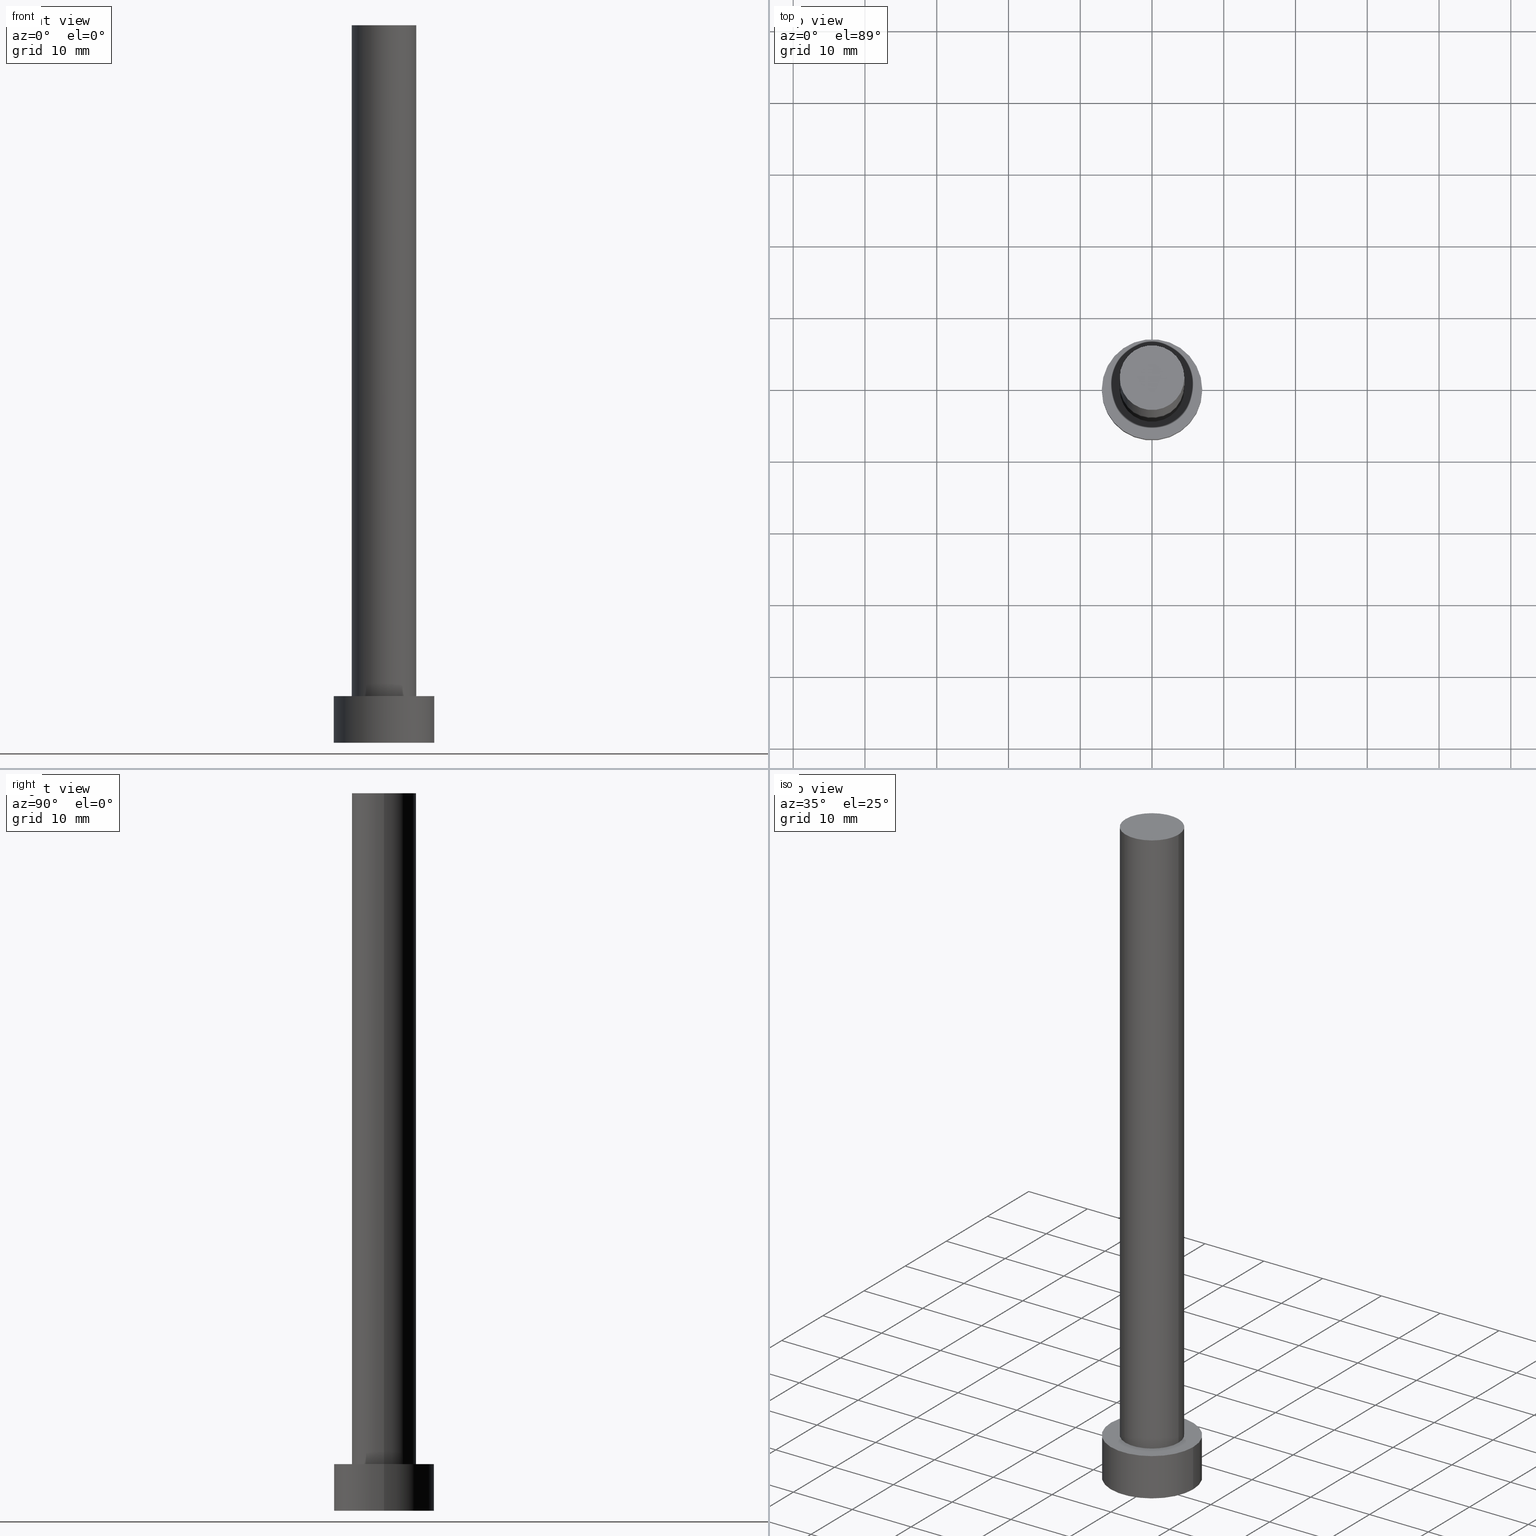
[diagram: canonical four-view strip — front | top / right | iso, engineering-drawing reading convention]
A machine part, canonical four-view strip (front | top / right | iso — engineering-drawing reading convention). The complete STEP part file that produces these views, byte-faithful:
ISO-10303-21;
HEADER;
FILE_DESCRIPTION (( 'STEP AP203' ),
    '1' );
FILE_NAME ('4ae0.STEP',
    '2023-02-13T13:46:45',
    ( '' ),
    ( '' ),
    'SwSTEP 2.0',
    'SolidWorks 2019',
    '' );
FILE_SCHEMA (( 'CONFIG_CONTROL_DESIGN' ));
ENDSEC;

DATA;
#1 = ADVANCED_FACE ( 'NONE', ( #166 ), #96, .T. ) ;
#2 = VECTOR ( 'NONE', #242, 1000.000000000000000 ) ;
#3 = APPROVAL_DATE_TIME ( #103, #79 ) ;
#4 = ORIENTED_EDGE ( 'NONE', *, *, #202, .T. ) ;
#5 = ORIENTED_EDGE ( 'NONE', *, *, #157, .F. ) ;
#6 = FACE_OUTER_BOUND ( 'NONE', #219, .T. ) ;
#7 = AXIS2_PLACEMENT_3D ( 'NONE', #247, #120, #173 ) ;
#8 = CARTESIAN_POINT ( 'NONE',  ( 0.000000000000000000, 0.000000000000000000, 100.0000000000000000 ) ) ;
#9 = ORIENTED_EDGE ( 'NONE', *, *, #202, .F. ) ;
#10 = CARTESIAN_POINT ( 'NONE',  ( 4.500000000000000888, 5.510910596163089556E-16, 6.500000000000000000 ) ) ;
#11 = ORIENTED_EDGE ( 'NONE', *, *, #45, .T. ) ;
#12 = DIRECTION ( 'NONE',  ( -1.000000000000000000, 0.000000000000000000, 0.000000000000000000 ) ) ;
#13 = AXIS2_PLACEMENT_3D ( 'NONE', #38, #57, #78 ) ;
#14 = ADVANCED_FACE ( 'NONE', ( #224 ), #50, .T. ) ;
#15 = CARTESIAN_POINT ( 'NONE',  ( 0.000000000000000000, 0.000000000000000000, 0.000000000000000000 ) ) ;
#16 = PERSON_AND_ORGANIZATION_ROLE ( 'creator' ) ;
#17 =( LENGTH_UNIT ( ) NAMED_UNIT ( * ) SI_UNIT ( .MILLI., .METRE. ) );
#18 = PERSON_AND_ORGANIZATION_ROLE ( 'design_owner' ) ;
#19 = AXIS2_PLACEMENT_3D ( 'NONE', #41, #100, #137 ) ;
#20 = DESIGN_CONTEXT ( 'detailed design', #138, 'design' ) ;
#21 = COORDINATED_UNIVERSAL_TIME_OFFSET ( 1, 0, .AHEAD. ) ;
#22 = APPROVAL ( #58, 'NEUR�EN�' ) ;
#23 = CC_DESIGN_PERSON_AND_ORGANIZATION_ASSIGNMENT ( #235, #84, ( #169 ) ) ;
#24 = APPROVAL_ROLE ( '' ) ;
#25 = EDGE_CURVE ( 'NONE', #160, #140, #161, .T. ) ;
#26 = CC_DESIGN_PERSON_AND_ORGANIZATION_ASSIGNMENT ( #170, #122, ( #124 ) ) ;
#27 = CIRCLE ( 'NONE', #135, 7.000000000000000000 ) ;
#28 = ORIENTED_EDGE ( 'NONE', *, *, #157, .T. ) ;
#29 = DIRECTION ( 'NONE',  ( -0.000000000000000000, -0.000000000000000000, -1.000000000000000000 ) ) ;
#30 = PLANE ( 'NONE',  #121 ) ;
#31 = ORIENTED_EDGE ( 'NONE', *, *, #212, .F. ) ;
#32 = LOCAL_TIME ( 14, 46, 45.00000000000000000, #119 ) ;
#33 = CARTESIAN_POINT ( 'NONE',  ( -7.000000000000000000, 0.000000000000000000, 6.500000000000000000 ) ) ;
#34 = VERTEX_POINT ( 'NONE', #65 ) ;
#35 = DIRECTION ( 'NONE',  ( -1.000000000000000000, 0.000000000000000000, 0.000000000000000000 ) ) ;
#36 = PLANE ( 'NONE',  #168 ) ;
#37 = AXIS2_PLACEMENT_3D ( 'NONE', #218, #194, #195 ) ;
#38 = CARTESIAN_POINT ( 'NONE',  ( 0.000000000000000000, 0.000000000000000000, 6.500000000000000000 ) ) ;
#39 = DATE_AND_TIME ( #134, #46 ) ;
#40 = DIRECTION ( 'NONE',  ( 1.000000000000000000, 0.000000000000000000, 0.000000000000000000 ) ) ;
#41 = CARTESIAN_POINT ( 'NONE',  ( 0.000000000000000000, 0.000000000000000000, 6.500000000000000000 ) ) ;
#42 = CIRCLE ( 'NONE', #37, 4.500000000000000888 ) ;
#43 = CC_DESIGN_SECURITY_CLASSIFICATION ( #169, ( #172 ) ) ;
#44 = APPLICATION_PROTOCOL_DEFINITION ( 'international standard', 'config_control_design', 1994, #138 ) ;
#45 = EDGE_CURVE ( 'NONE', #211, #34, #42, .T. ) ;
#46 = LOCAL_TIME ( 14, 46, 45.00000000000000000, #76 ) ;
#47 = ORIENTED_EDGE ( 'NONE', *, *, #163, .T. ) ;
#48 = CARTESIAN_POINT ( 'NONE',  ( 0.000000000000000000, 0.000000000000000000, 0.000000000000000000 ) ) ;
#49 = ORIENTED_EDGE ( 'NONE', *, *, #25, .F. ) ;
#50 = PLANE ( 'NONE',  #208 ) ;
#51 = LINE ( 'NONE', #199, #102 ) ;
#52 = PRODUCT_DEFINITION_SHAPE ( 'NONE', 'NONE',  #124 ) ;
#53 = AXIS2_PLACEMENT_3D ( 'NONE', #165, #200, #35 ) ;
#54 = DIRECTION ( 'NONE',  ( -1.000000000000000000, 0.000000000000000000, 0.000000000000000000 ) ) ;
#55 = CARTESIAN_POINT ( 'NONE',  ( 7.000000000000000000, 8.572527594031471218E-16, 6.500000000000000000 ) ) ;
#56 =( NAMED_UNIT ( * ) PLANE_ANGLE_UNIT ( ) SI_UNIT ( $, .RADIAN. ) );
#57 = DIRECTION ( 'NONE',  ( 0.000000000000000000, 0.000000000000000000, 1.000000000000000000 ) ) ;
#58 = APPROVAL_STATUS ( 'not_yet_approved' ) ;
#59 = DIRECTION ( 'NONE',  ( 1.000000000000000000, 0.000000000000000000, 0.000000000000000000 ) ) ;
#60 = CIRCLE ( 'NONE', #111, 4.500000000000000888 ) ;
#61 = PRODUCT_RELATED_PRODUCT_CATEGORY ( 'detail', '', ( #94 ) ) ;
#62 = ORIENTED_EDGE ( 'NONE', *, *, #230, .F. ) ;
#63 = DATE_AND_TIME ( #210, #130 ) ;
#64 = ORIENTED_EDGE ( 'NONE', *, *, #174, .T. ) ;
#65 = CARTESIAN_POINT ( 'NONE',  ( -4.500000000000000888, 0.000000000000000000, 100.0000000000000000 ) ) ;
#66 = VERTEX_POINT ( 'NONE', #10 ) ;
#67 = DIRECTION ( 'NONE',  ( 1.000000000000000000, 0.000000000000000000, 0.000000000000000000 ) ) ;
#68 = APPROVAL ( #206, 'NEUR�EN�' ) ;
#69 = CYLINDRICAL_SURFACE ( 'NONE', #228, 4.500000000000000888 ) ;
#70 = ADVANCED_FACE ( 'NONE', ( #6 ), #223, .T. ) ;
#71 = DIRECTION ( 'NONE',  ( 0.000000000000000000, 0.000000000000000000, 1.000000000000000000 ) ) ;
#72 = DIRECTION ( 'NONE',  ( -1.000000000000000000, 0.000000000000000000, 0.000000000000000000 ) ) ;
#73 = VECTOR ( 'NONE', #132, 1000.000000000000000 ) ;
#74 = FACE_BOUND ( 'NONE', #107, .T. ) ;
#75 = PERSON_AND_ORGANIZATION ( #159, #227 ) ;
#76 = COORDINATED_UNIVERSAL_TIME_OFFSET ( 1, 0, .AHEAD. ) ;
#77 = CIRCLE ( 'NONE', #153, 4.500000000000000888 ) ;
#78 = DIRECTION ( 'NONE',  ( 1.000000000000000000, 0.000000000000000000, 0.000000000000000000 ) ) ;
#79 = APPROVAL ( #83, 'NEUR�EN�' ) ;
#80 = APPROVAL_ROLE ( '' ) ;
#81 = CALENDAR_DATE ( 2023, 13, 2 ) ;
#82 = MANIFOLD_SOLID_BREP ( 'P�idat vysunut�m3', #98 ) ;
#83 = APPROVAL_STATUS ( 'not_yet_approved' ) ;
#84 = PERSON_AND_ORGANIZATION_ROLE ( 'classification_officer' ) ;
#85 = AXIS2_PLACEMENT_3D ( 'NONE', #237, #185, #67 ) ;
#86 = ORIENTED_EDGE ( 'NONE', *, *, #88, .F. ) ;
#87 = CARTESIAN_POINT ( 'NONE',  ( 4.500000000000000888, 5.510910596163089556E-16, 100.0000000000000000 ) ) ;
#88 = EDGE_CURVE ( 'NONE', #66, #158, #77, .T. ) ;
#89 = EDGE_LOOP ( 'NONE', ( #217, #31, #64, #91 ) ) ;
#90 = DIRECTION ( 'NONE',  ( 0.000000000000000000, 0.000000000000000000, 1.000000000000000000 ) ) ;
#91 = ORIENTED_EDGE ( 'NONE', *, *, #230, .T. ) ;
#92 = CARTESIAN_POINT ( 'NONE',  ( 7.000000000000000000, 8.572527594031471218E-16, 6.500000000000000000 ) ) ;
#93 = EDGE_LOOP ( 'NONE', ( #9, #213 ) ) ;
#94 = PRODUCT ( '4ae0', '4ae0', '', ( #189 ) ) ;
#95 = FACE_OUTER_BOUND ( 'NONE', #241, .T. ) ;
#96 = CYLINDRICAL_SURFACE ( 'NONE', #129, 7.000000000000000000 ) ;
#97 = FACE_OUTER_BOUND ( 'NONE', #141, .T. ) ;
#98 = CLOSED_SHELL ( 'NONE', ( #193, #70, #1, #133, #198, #155, #14 ) ) ;
#99 = APPROVAL_DATE_TIME ( #232, #68 ) ;
#100 = DIRECTION ( 'NONE',  ( 0.000000000000000000, 0.000000000000000000, 1.000000000000000000 ) ) ;
#101 = APPROVAL_DATE_TIME ( #39, #22 ) ;
#102 = VECTOR ( 'NONE', #116, 1000.000000000000000 ) ;
#103 = DATE_AND_TIME ( #156, #245 ) ;
#104 = COORDINATED_UNIVERSAL_TIME_OFFSET ( 1, 0, .AHEAD. ) ;
#105 = SHAPE_DEFINITION_REPRESENTATION ( #52, #254 ) ;
#106 = CC_DESIGN_PERSON_AND_ORGANIZATION_ASSIGNMENT ( #75, #16, ( #172 ) ) ;
#107 = EDGE_LOOP ( 'NONE', ( #62, #86 ) ) ;
#108 = CARTESIAN_POINT ( 'NONE',  ( 0.000000000000000000, 0.000000000000000000, 100.0000000000000000 ) ) ;
#109 = ORIENTED_EDGE ( 'NONE', *, *, #25, .T. ) ;
#110 = CARTESIAN_POINT ( 'NONE',  ( 0.000000000000000000, 0.000000000000000000, 6.500000000000000000 ) ) ;
#111 = AXIS2_PLACEMENT_3D ( 'NONE', #108, #180, #40 ) ;
#112 = ORIENTED_EDGE ( 'NONE', *, *, #191, .T. ) ;
#113 = CARTESIAN_POINT ( 'NONE',  ( -7.000000000000000000, 0.000000000000000000, 0.000000000000000000 ) ) ;
#114 = EDGE_LOOP ( 'NONE', ( #49, #221, #28, #4 ) ) ;
#115 = DIRECTION ( 'NONE',  ( 0.000000000000000000, 0.000000000000000000, 1.000000000000000000 ) ) ;
#116 = DIRECTION ( 'NONE',  ( -0.000000000000000000, -0.000000000000000000, -1.000000000000000000 ) ) ;
#117 = CC_DESIGN_PERSON_AND_ORGANIZATION_ASSIGNMENT ( #226, #18, ( #94 ) ) ;
#118 = SECURITY_CLASSIFICATION_LEVEL ( 'unclassified' ) ;
#119 = COORDINATED_UNIVERSAL_TIME_OFFSET ( 1, 0, .AHEAD. ) ;
#120 = DIRECTION ( 'NONE',  ( 0.000000000000000000, 0.000000000000000000, 1.000000000000000000 ) ) ;
#121 = AXIS2_PLACEMENT_3D ( 'NONE', #110, #71, #225 ) ;
#122 = PERSON_AND_ORGANIZATION_ROLE ( 'creator' ) ;
#123 = CIRCLE ( 'NONE', #19, 7.000000000000000000 ) ;
#124 = PRODUCT_DEFINITION ( 'NEZN�M�', '', #172, #20 ) ;
#125 = DIRECTION ( 'NONE',  ( 1.000000000000000000, 0.000000000000000000, 0.000000000000000000 ) ) ;
#126 = ORIENTED_EDGE ( 'NONE', *, *, #212, .T. ) ;
#127 = DIRECTION ( 'NONE',  ( -0.000000000000000000, -0.000000000000000000, -1.000000000000000000 ) ) ;
#128 = LINE ( 'NONE', #150, #73 ) ;
#129 = AXIS2_PLACEMENT_3D ( 'NONE', #243, #149, #72 ) ;
#130 = LOCAL_TIME ( 14, 46, 45.00000000000000000, #104 ) ;
#131 = FACE_OUTER_BOUND ( 'NONE', #93, .T. ) ;
#132 = DIRECTION ( 'NONE',  ( -0.000000000000000000, -0.000000000000000000, -1.000000000000000000 ) ) ;
#133 = ADVANCED_FACE ( 'NONE', ( #74, #97 ), #30, .T. ) ;
#134 = CALENDAR_DATE ( 2023, 13, 2 ) ;
#135 = AXIS2_PLACEMENT_3D ( 'NONE', #239, #186, #125 ) ;
#136 = CALENDAR_DATE ( 2023, 13, 2 ) ;
#137 = DIRECTION ( 'NONE',  ( 1.000000000000000000, 0.000000000000000000, 0.000000000000000000 ) ) ;
#138 = APPLICATION_CONTEXT ( 'configuration controlled 3d designs of mechanical parts and assemblies' ) ;
#139 =( GEOMETRIC_REPRESENTATION_CONTEXT ( 3 ) GLOBAL_UNCERTAINTY_ASSIGNED_CONTEXT ( ( #255 ) ) GLOBAL_UNIT_ASSIGNED_CONTEXT ( ( #17, #56, #229 ) ) REPRESENTATION_CONTEXT ( 'NONE', 'WORKASPACE' ) );
#140 = VERTEX_POINT ( 'NONE', #183 ) ;
#141 = EDGE_LOOP ( 'NONE', ( #238, #112 ) ) ;
#142 = DIRECTION ( 'NONE',  ( -0.000000000000000000, -0.000000000000000000, -1.000000000000000000 ) ) ;
#143 = CARTESIAN_POINT ( 'NONE',  ( 0.000000000000000000, 0.000000000000000000, 6.500000000000000000 ) ) ;
#144 = VERTEX_POINT ( 'NONE', #244 ) ;
#145 = LINE ( 'NONE', #33, #205 ) ;
#146 = ORIENTED_EDGE ( 'NONE', *, *, #191, .F. ) ;
#147 = CYLINDRICAL_SURFACE ( 'NONE', #53, 4.500000000000000888 ) ;
#148 = APPROVAL_PERSON_ORGANIZATION ( #234, #79, #24 ) ;
#149 = DIRECTION ( 'NONE',  ( -0.000000000000000000, -0.000000000000000000, -1.000000000000000000 ) ) ;
#150 = CARTESIAN_POINT ( 'NONE',  ( -4.500000000000000888, 0.000000000000000000, 100.0000000000000000 ) ) ;
#151 = PERSON_AND_ORGANIZATION ( #159, #227 ) ;
#152 = DIRECTION ( 'NONE',  ( 0.000000000000000000, 0.000000000000000000, 1.000000000000000000 ) ) ;
#153 = AXIS2_PLACEMENT_3D ( 'NONE', #240, #90, #197 ) ;
#154 = CC_DESIGN_APPROVAL ( #68, ( #172 ) ) ;
#155 = ADVANCED_FACE ( 'NONE', ( #167 ), #69, .T. ) ;
#156 = CALENDAR_DATE ( 2023, 13, 2 ) ;
#157 = EDGE_CURVE ( 'NONE', #144, #184, #145, .T. ) ;
#158 = VERTEX_POINT ( 'NONE', #215 ) ;
#159 = PERSON ( 'NEUR�EN�', 'NEUR�EN�', 'NEUR�EN�', ('NEUR�EN�'), ('NEUR�EN�'), ('NEUR�EN�') ) ;
#160 = VERTEX_POINT ( 'NONE', #55 ) ;
#161 = LINE ( 'NONE', #92, #2 ) ;
#162 = DIRECTION ( 'NONE',  ( 1.000000000000000000, 0.000000000000000000, -0.000000000000000000 ) ) ;
#163 = EDGE_CURVE ( 'NONE', #211, #66, #51, .T. ) ;
#164 = DIRECTION ( 'NONE',  ( 0.000000000000000000, 0.000000000000000000, 1.000000000000000000 ) ) ;
#165 = CARTESIAN_POINT ( 'NONE',  ( 0.000000000000000000, 0.000000000000000000, 100.0000000000000000 ) ) ;
#166 = FACE_OUTER_BOUND ( 'NONE', #114, .T. ) ;
#167 = FACE_OUTER_BOUND ( 'NONE', #89, .T. ) ;
#168 = AXIS2_PLACEMENT_3D ( 'NONE', #48, #115, #187 ) ;
#169 = SECURITY_CLASSIFICATION ( '', '', #118 ) ;
#170 = PERSON_AND_ORGANIZATION ( #159, #227 ) ;
#171 = DATE_TIME_ROLE ( 'creation_date' ) ;
#172 = PRODUCT_DEFINITION_FORMATION_WITH_SPECIFIED_SOURCE ( 'LIBOVOLN�', '', #94, .NOT_KNOWN. ) ;
#173 = DIRECTION ( 'NONE',  ( 1.000000000000000000, 0.000000000000000000, 0.000000000000000000 ) ) ;
#174 = EDGE_CURVE ( 'NONE', #34, #158, #128, .T. ) ;
#175 = AXIS2_PLACEMENT_3D ( 'NONE', #15, #152, #59 ) ;
#176 = CIRCLE ( 'NONE', #85, 7.000000000000000000 ) ;
#177 = APPROVAL_PERSON_ORGANIZATION ( #252, #68, #80 ) ;
#178 = EDGE_LOOP ( 'NONE', ( #126, #11 ) ) ;
#179 = ORIENTED_EDGE ( 'NONE', *, *, #45, .F. ) ;
#180 = DIRECTION ( 'NONE',  ( 0.000000000000000000, 0.000000000000000000, 1.000000000000000000 ) ) ;
#181 = ORIENTED_EDGE ( 'NONE', *, *, #174, .F. ) ;
#182 = CC_DESIGN_APPROVAL ( #22, ( #124 ) ) ;
#183 = CARTESIAN_POINT ( 'NONE',  ( 7.000000000000000000, 8.572527594031471218E-16, 0.000000000000000000 ) ) ;
#184 = VERTEX_POINT ( 'NONE', #113 ) ;
#185 = DIRECTION ( 'NONE',  ( 0.000000000000000000, 0.000000000000000000, 1.000000000000000000 ) ) ;
#186 = DIRECTION ( 'NONE',  ( 0.000000000000000000, 0.000000000000000000, 1.000000000000000000 ) ) ;
#187 = DIRECTION ( 'NONE',  ( 1.000000000000000000, 0.000000000000000000, -0.000000000000000000 ) ) ;
#188 = DATE_AND_TIME ( #136, #32 ) ;
#189 = MECHANICAL_CONTEXT ( 'NONE', #246, 'mechanical' ) ;
#190 = LOCAL_TIME ( 14, 46, 45.00000000000000000, #204 ) ;
#191 = EDGE_CURVE ( 'NONE', #160, #144, #176, .T. ) ;
#192 = DATE_TIME_ROLE ( 'classification_date' ) ;
#193 = ADVANCED_FACE ( 'NONE', ( #95 ), #147, .T. ) ;
#194 = DIRECTION ( 'NONE',  ( 0.000000000000000000, 0.000000000000000000, 1.000000000000000000 ) ) ;
#195 = DIRECTION ( 'NONE',  ( 1.000000000000000000, 0.000000000000000000, 0.000000000000000000 ) ) ;
#196 = ORIENTED_EDGE ( 'NONE', *, *, #88, .T. ) ;
#197 = DIRECTION ( 'NONE',  ( 1.000000000000000000, 0.000000000000000000, 0.000000000000000000 ) ) ;
#198 = ADVANCED_FACE ( 'NONE', ( #131 ), #36, .F. ) ;
#199 = CARTESIAN_POINT ( 'NONE',  ( 4.500000000000000888, 5.510910596163089556E-16, 100.0000000000000000 ) ) ;
#200 = DIRECTION ( 'NONE',  ( -0.000000000000000000, -0.000000000000000000, -1.000000000000000000 ) ) ;
#201 = PERSON_AND_ORGANIZATION_ROLE ( 'design_supplier' ) ;
#202 = EDGE_CURVE ( 'NONE', #184, #140, #27, .T. ) ;
#203 = APPLICATION_PROTOCOL_DEFINITION ( 'international standard', 'config_control_design', 1994, #246 ) ;
#204 = COORDINATED_UNIVERSAL_TIME_OFFSET ( 1, 0, .AHEAD. ) ;
#205 = VECTOR ( 'NONE', #142, 1000.000000000000000 ) ;
#206 = APPROVAL_STATUS ( 'not_yet_approved' ) ;
#207 = CC_DESIGN_PERSON_AND_ORGANIZATION_ASSIGNMENT ( #151, #201, ( #172 ) ) ;
#208 = AXIS2_PLACEMENT_3D ( 'NONE', #220, #164, #162 ) ;
#209 = CC_DESIGN_APPROVAL ( #79, ( #169 ) ) ;
#210 = CALENDAR_DATE ( 2023, 13, 2 ) ;
#211 = VERTEX_POINT ( 'NONE', #87 ) ;
#212 = EDGE_CURVE ( 'NONE', #34, #211, #60, .T. ) ;
#213 = ORIENTED_EDGE ( 'NONE', *, *, #248, .F. ) ;
#214 = CIRCLE ( 'NONE', #175, 7.000000000000000000 ) ;
#215 = CARTESIAN_POINT ( 'NONE',  ( -4.500000000000000888, 0.000000000000000000, 6.500000000000000000 ) ) ;
#216 = CC_DESIGN_DATE_AND_TIME_ASSIGNMENT ( #63, #192, ( #169 ) ) ;
#217 = ORIENTED_EDGE ( 'NONE', *, *, #163, .F. ) ;
#218 = CARTESIAN_POINT ( 'NONE',  ( 0.000000000000000000, 0.000000000000000000, 100.0000000000000000 ) ) ;
#219 = EDGE_LOOP ( 'NONE', ( #146, #109, #236, #5 ) ) ;
#220 = CARTESIAN_POINT ( 'NONE',  ( 0.000000000000000000, 0.000000000000000000, 100.0000000000000000 ) ) ;
#221 = ORIENTED_EDGE ( 'NONE', *, *, #251, .F. ) ;
#222 = APPROVAL_PERSON_ORGANIZATION ( #253, #22, #249 ) ;
#223 = CYLINDRICAL_SURFACE ( 'NONE', #233, 7.000000000000000000 ) ;
#224 = FACE_OUTER_BOUND ( 'NONE', #178, .T. ) ;
#225 = DIRECTION ( 'NONE',  ( 1.000000000000000000, 0.000000000000000000, -0.000000000000000000 ) ) ;
#226 = PERSON_AND_ORGANIZATION ( #159, #227 ) ;
#227 = ORGANIZATION ( 'NEUR�EN�', 'NEUR�EN�', '' ) ;
#228 = AXIS2_PLACEMENT_3D ( 'NONE', #8, #29, #54 ) ;
#229 =( NAMED_UNIT ( * ) SI_UNIT ( $, .STERADIAN. ) SOLID_ANGLE_UNIT ( ) );
#230 = EDGE_CURVE ( 'NONE', #158, #66, #250, .T. ) ;
#231 = CC_DESIGN_DATE_AND_TIME_ASSIGNMENT ( #188, #171, ( #124 ) ) ;
#232 = DATE_AND_TIME ( #81, #190 ) ;
#233 = AXIS2_PLACEMENT_3D ( 'NONE', #143, #127, #12 ) ;
#234 = PERSON_AND_ORGANIZATION ( #159, #227 ) ;
#235 = PERSON_AND_ORGANIZATION ( #159, #227 ) ;
#236 = ORIENTED_EDGE ( 'NONE', *, *, #248, .T. ) ;
#237 = CARTESIAN_POINT ( 'NONE',  ( 0.000000000000000000, 0.000000000000000000, 6.500000000000000000 ) ) ;
#238 = ORIENTED_EDGE ( 'NONE', *, *, #251, .T. ) ;
#239 = CARTESIAN_POINT ( 'NONE',  ( 0.000000000000000000, 0.000000000000000000, 0.000000000000000000 ) ) ;
#240 = CARTESIAN_POINT ( 'NONE',  ( 0.000000000000000000, 0.000000000000000000, 6.500000000000000000 ) ) ;
#241 = EDGE_LOOP ( 'NONE', ( #179, #47, #196, #181 ) ) ;
#242 = DIRECTION ( 'NONE',  ( -0.000000000000000000, -0.000000000000000000, -1.000000000000000000 ) ) ;
#243 = CARTESIAN_POINT ( 'NONE',  ( 0.000000000000000000, 0.000000000000000000, 6.500000000000000000 ) ) ;
#244 = CARTESIAN_POINT ( 'NONE',  ( -7.000000000000000000, 0.000000000000000000, 6.500000000000000000 ) ) ;
#245 = LOCAL_TIME ( 14, 46, 45.00000000000000000, #21 ) ;
#246 = APPLICATION_CONTEXT ( 'configuration controlled 3d designs of mechanical parts and assemblies' ) ;
#247 = CARTESIAN_POINT ( 'NONE',  ( 0.000000000000000000, 0.000000000000000000, 0.000000000000000000 ) ) ;
#248 = EDGE_CURVE ( 'NONE', #140, #184, #214, .T. ) ;
#249 = APPROVAL_ROLE ( '' ) ;
#250 = CIRCLE ( 'NONE', #13, 4.500000000000000888 ) ;
#251 = EDGE_CURVE ( 'NONE', #144, #160, #123, .T. ) ;
#252 = PERSON_AND_ORGANIZATION ( #159, #227 ) ;
#253 = PERSON_AND_ORGANIZATION ( #159, #227 ) ;
#254 = ADVANCED_BREP_SHAPE_REPRESENTATION ( '4ae0', ( #82, #7 ), #139 ) ;
#255 = UNCERTAINTY_MEASURE_WITH_UNIT (LENGTH_MEASURE( 1.000000000000000082E-05 ), #17, 'distance_accuracy_value', 'NONE');
ENDSEC;
END-ISO-10303-21;
